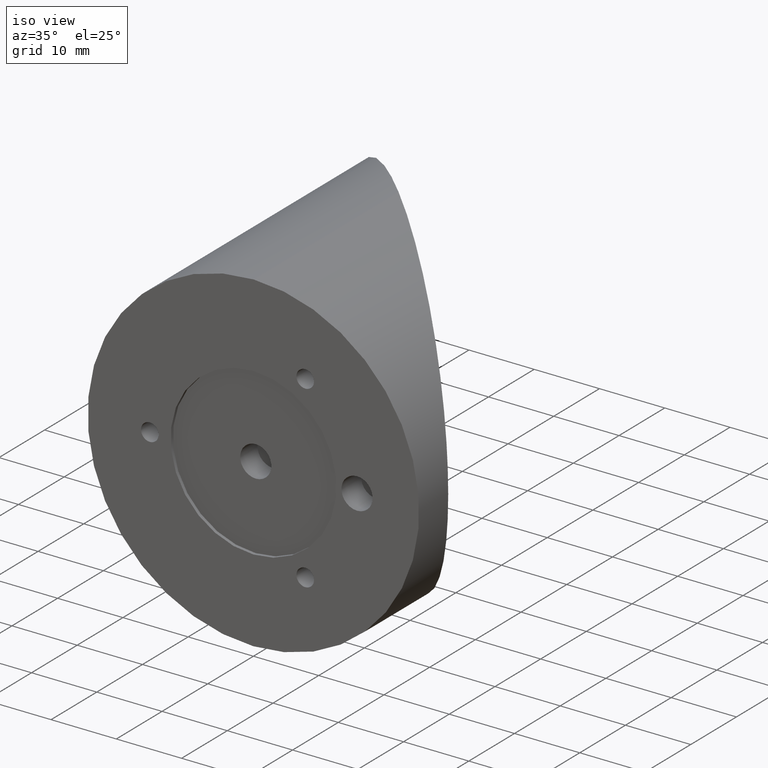
[diagram: clean part render]
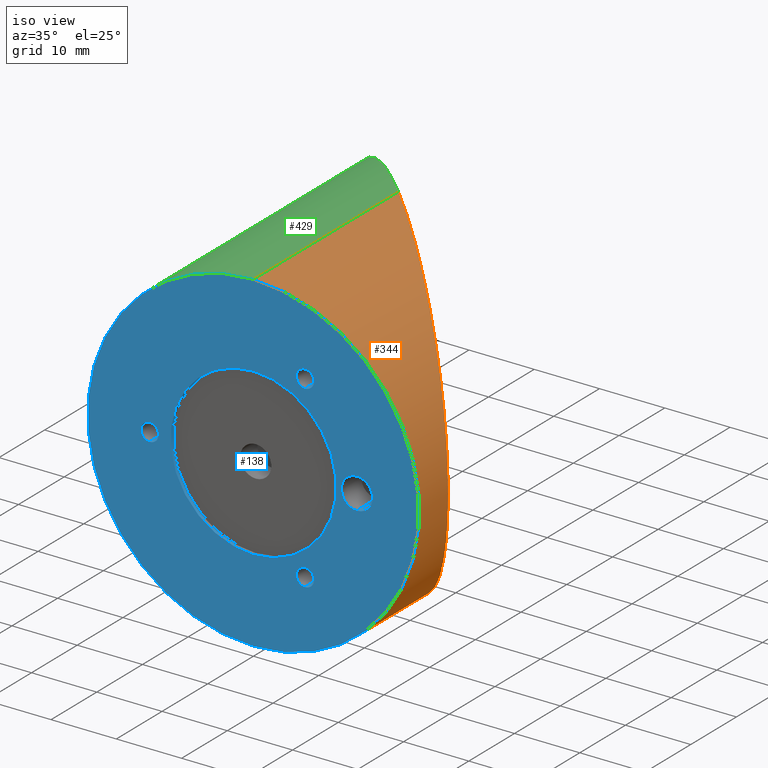
[diagram: same view with three faces highlighted in distinct colors, each labeled with its STEP entity id]
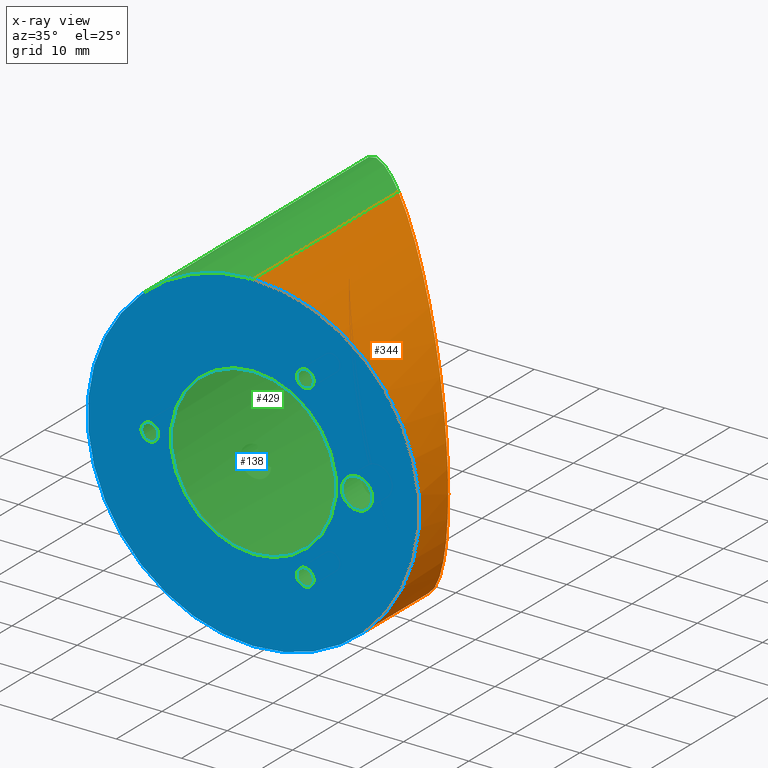
[diagram: x-ray of the same camera — body ghosted, the three highlighted faces saturated]
A machine part, iso view with three faces highlighted in distinct colors.
The next image is the same camera in x-ray (body ghosted, the three faces saturated) — at least one of them is partly hidden behind the body in this view.
Their STEP definitions:

[orange] entity #344 — the highlighted cylindrical surface (partial cylindrical patch) has radius 25.4 mm, axis along (-0, -1, -0).
#1 = DIRECTION ( 'NONE',  ( -0.0000000000000000000, -1.000000000000000000, -0.0000000000000000000 ) ) ;
#3 = CARTESIAN_POINT ( 'NONE',  ( 25.40000000000139124, 6.350000000004712319, -1.007793445402402011 ) ) ;
#4 = CARTESIAN_POINT ( 'NONE',  ( 23.11608779368936339, 8.633912206318735016, 10.53705452664367748 ) ) ;
#7 = CARTESIAN_POINT ( 'NONE',  ( 7.107514868009670472, 24.64248513201214763, -24.42891655262617334 ) ) ;
#20 = CARTESIAN_POINT ( 'NONE',  ( 2.867070042871639135, 28.88292995715369216, -25.24789856614431116 ) ) ;
#36 = CARTESIAN_POINT ( 'NONE',  ( -4.343747583845909616E-12, 31.75000000003258549, 25.39999999999973568 ) ) ;
#44 = CARTESIAN_POINT ( 'NONE',  ( 18.75366693860043554, 12.99633306141087985, 17.21739479121827898 ) ) ;
#64 = CARTESIAN_POINT ( 'NONE',  ( 3.110602869834276865E-15, 0.0000000000000000000, 25.39999999999999858 ) ) ;
#66 = CARTESIAN_POINT ( 'NONE',  ( 24.80328668270944092, 6.946713317296391743, -5.495410143702742722 ) ) ;
#69 = EDGE_CURVE ( 'NONE', #303, #342, #370, .T. ) ;
#80 = CARTESIAN_POINT ( 'NONE',  ( 23.49180749685926983, 8.258192503148499952, 9.670471214657705872 ) ) ;
#85 = CARTESIAN_POINT ( 'NONE',  ( 0.0000000000000000000, 90.23632920900077181, -25.39999999999999858 ) ) ;
#91 = CARTESIAN_POINT ( 'NONE',  ( 3.110602869834276865E-15, 90.23632920900077181, 25.39999999999999858 ) ) ;
#94 = CARTESIAN_POINT ( 'NONE',  ( 18.76394866295997588, 12.98605133705183690, -17.20628069571811380 ) ) ;
#100 = CARTESIAN_POINT ( 'NONE',  ( 11.21135902793158223, 20.53864097208624884, -22.84290149297057937 ) ) ;
#129 = EDGE_CURVE ( 'NONE', #303, #667, #785, .T. ) ;
#131 = CARTESIAN_POINT ( 'NONE',  ( 2.858770735336378710, 28.89122926468965247, 25.24882967334772843 ) ) ;
#159 = CARTESIAN_POINT ( 'NONE',  ( 24.17195477904778755, 7.578045220958599337, -7.861663276391449351 ) ) ;
#162 = VECTOR ( 'NONE', #767, 1000.000000000000000 ) ;
#165 = CARTESIAN_POINT ( 'NONE',  ( 24.45451196593075593, 7.295488034076068828, 6.935761289269316343 ) ) ;
#187 = DIRECTION ( 'NONE',  ( 0.0000000000000000000, 0.0000000000000000000, -1.000000000000000000 ) ) ;
#195 = DIRECTION ( 'NONE',  ( 0.0000000000000000000, 1.000000000000000000, 0.0000000000000000000 ) ) ;
#204 = CARTESIAN_POINT ( 'NONE',  ( 12.84298988541444864, 18.90701011460226511, 21.91716930012565356 ) ) ;
#217 = CARTESIAN_POINT ( 'NONE',  ( 23.67293359248889217, 8.077066407517943247, -9.218703919396871171 ) ) ;
#224 = CARTESIAN_POINT ( 'NONE',  ( 25.39999999999953673, 6.350000000006544632, 1.008915357888921172 ) ) ;
#225 = CARTESIAN_POINT ( 'NONE',  ( 25.40000000000046754, 6.350000000005628920, 2.310600058712741191E-11 ) ) ;
#226 = CARTESIAN_POINT ( 'NONE',  ( 22.91856478368881511, 8.831435216319798442, 10.95957008676527700 ) ) ;
#239 = CARTESIAN_POINT ( 'NONE',  ( 0.7170981315374379550, 31.03290186848983367, -25.39999999999984581 ) ) ;
#242 = CARTESIAN_POINT ( 'NONE',  ( 20.37567222707012604, 11.37432777293942365, -15.17182044832020971 ) ) ;
#259 = CARTESIAN_POINT ( 'NONE',  ( 25.40000000000046754, 6.350000000005628920, 2.310600058712741191E-11 ) ) ;
#268 = CARTESIAN_POINT ( 'NONE',  ( 13.17241457464497500, 18.57758542537235869, 21.72089280077771178 ) ) ;
#273 = CARTESIAN_POINT ( 'NONE',  ( 20.87945820684569398, 10.87054179316435487, 14.47070441000486340 ) ) ;
#280 = EDGE_CURVE ( 'NONE', #667, #519, #804, .T. ) ;
#285 = CARTESIAN_POINT ( 'NONE',  ( 23.11892783636140081, 8.631072163646059892, -10.53081232286892543 ) ) ;
#294 = CARTESIAN_POINT ( 'NONE',  ( 25.34003501376936285, 6.409964986235826778, 2.019679683148877469 ) ) ;
#298 = CARTESIAN_POINT ( 'NONE',  ( 24.45577271687576726, 7.294227283130367390, -6.931481260837111691 ) ) ;
#302 = CARTESIAN_POINT ( 'NONE',  ( 15.77365983277582551, 15.97634016723826278, -19.92461959032602437 ) ) ;
#303 = VERTEX_POINT ( 'NONE', #36 ) ;
#342 = VERTEX_POINT ( 'NONE', #259 ) ;
#343 = CARTESIAN_POINT ( 'NONE',  ( 14.15460011604927182, 17.59539988396674914, 21.09411549236753558 ) ) ;
#344 = ADVANCED_FACE ( 'NONE', ( #742 ), #590, .T. ) ;
#370 = B_SPLINE_CURVE_WITH_KNOTS ( 'NONE', 3,
 ( #736, #798, #533, #131, #540, #803, #872, #542, #666, #204, #268, #734, #343, #399, #469, #669, #44, #868, #471, #273, #405, #877, #702, #226, #4, #80, #566, #561, #165, #836, #810, #294, #224, #626 ),
 .UNSPECIFIED., .F., .F.,
 ( 4, 2, 2, 2, 2, 2, 2, 2, 2, 2, 2, 2, 2, 2, 2, 2, 4 ),
 ( 0.09612468396212230093, 0.09912765318120356217, 0.1021306224002848234, 0.1081365608384473459, 0.1141424992766098684, 0.1156439838861504921, 0.1171454684956911296, 0.1201484377147723770, 0.1261543761529348717, 0.1276558607624755093, 0.1291573453720161191, 0.1321603145910973665, 0.1336617992006380040, 0.1351632838101786138, 0.1381662530292598612, 0.1411692222483411085, 0.1441721914674223282 ),
 .UNSPECIFIED. ) ;
#371 = CARTESIAN_POINT ( 'NONE',  ( 15.14683054440104470, 16.60316945561308088, -20.40453238909995193 ) ) ;
#376 = CARTESIAN_POINT ( 'NONE',  ( 21.13504976809815261, 10.61495023191212006, -14.09492928021393610 ) ) ;
#399 = CARTESIAN_POINT ( 'NONE',  ( 15.12322275977875030, 16.62677724023642511, 20.42218853993120220 ) ) ;
#405 = CARTESIAN_POINT ( 'NONE',  ( 21.12816750881075123, 10.62183249119944861, 14.10527043395201829 ) ) ;
#421 = CARTESIAN_POINT ( 'NONE',  ( 0.0000000000000000000, 0.0000000000000000000, -25.39999999999999858 ) ) ;
#431 = CARTESIAN_POINT ( 'NONE',  ( 25.34023511099329085, 6.409764889012417477, -2.014352294029015500 ) ) ;
#437 = CARTESIAN_POINT ( 'NONE',  ( 21.85500477763475047, 9.894995222374896926, -12.97336527761181912 ) ) ;
#444 = CARTESIAN_POINT ( 'NONE',  ( 17.60588103589598674, 14.14411896411649572, -18.37792682288227297 ) ) ;
#447 = CARTESIAN_POINT ( 'NONE',  ( 3.582885925747320233, 28.16711407427769132, -25.15632303140145254 ) ) ;
#469 = CARTESIAN_POINT ( 'NONE',  ( 15.75322996234837447, 15.99677003766594297, 19.94088469937085861 ) ) ;
#471 = CARTESIAN_POINT ( 'NONE',  ( 20.36646652801032076, 11.38353347200018995, 15.18420568540170557 ) ) ;
#485 = AXIS2_PLACEMENT_3D ( 'NONE', #649, #864, #187 ) ;
#493 = EDGE_CURVE ( 'NONE', #342, #543, #888, .T. ) ;
#498 = CARTESIAN_POINT ( 'NONE',  ( 5.710304965995690374, 26.03969503402746000, -24.79159247131747534 ) ) ;
#516 = CARTESIAN_POINT ( 'NONE',  ( 1.434912573059156093, 30.31508742696742331, -25.36961762708931900 ) ) ;
#519 = VERTEX_POINT ( 'NONE', #421 ) ;
#533 = CARTESIAN_POINT ( 'NONE',  ( 1.427272103732073028, 30.32272789629522691, 25.37003871366476560 ) ) ;
#539 = EDGE_CURVE ( 'NONE', #543, #519, #658, .T. ) ;
#540 = CARTESIAN_POINT ( 'NONE',  ( 3.574495887738063704, 28.17550411228712548, 25.15748655172709647 ) ) ;
#542 = CARTESIAN_POINT ( 'NONE',  ( 9.838007526092477306, 21.91199247392712834, 23.46256244877612218 ) ) ;
#543 = VERTEX_POINT ( 'NONE', #630 ) ;
#557 = CARTESIAN_POINT ( 'NONE',  ( 24.90605418778676139, 6.843945812219055291, -5.009901835480869536 ) ) ;
#561 = CARTESIAN_POINT ( 'NONE',  ( 24.17058905248307710, 7.579410947524475084, 7.866010588764352995 ) ) ;
#566 = CARTESIAN_POINT ( 'NONE',  ( 23.67062844457653981, 8.079371555431473340, 9.224653027104404046 ) ) ;
#568 = CARTESIAN_POINT ( 'NONE',  ( 2.836272883222079599E-13, 31.75000000002761169, -25.39999999999985647 ) ) ;
#590 = CYLINDRICAL_SURFACE ( 'NONE', #485, 25.39999999999999858 ) ;
#599 = CARTESIAN_POINT ( 'NONE',  ( 0.0000000000000000000, 0.0000000000000000000, 0.0000000000000000000 ) ) ;
#626 = CARTESIAN_POINT ( 'NONE',  ( 25.40000000000046754, 6.350000000005628920, 2.310600058712741191E-11 ) ) ;
#627 = CARTESIAN_POINT ( 'NONE',  ( 22.92166091689162499, 8.828339083116061303, -10.95307427962188207 ) ) ;
#630 = CARTESIAN_POINT ( 'NONE',  ( 2.836272883222079599E-13, 31.75000000002761169, -25.39999999999985647 ) ) ;
#637 = CARTESIAN_POINT ( 'NONE',  ( 13.86304219774238256, 17.88695780227283905, -21.29759325797736835 ) ) ;
#642 = CARTESIAN_POINT ( 'NONE',  ( 20.88705431035367965, 10.86294568965542773, -14.45970665876039796 ) ) ;
#649 = CARTESIAN_POINT ( 'NONE',  ( 0.0000000000000000000, 90.23632920900077181, 0.0000000000000000000 ) ) ;
#658 = LINE ( 'NONE', #85, #162 ) ;
#666 = CARTESIAN_POINT ( 'NONE',  ( 11.18778706063290151, 20.56221293938524752, 22.85407206433040272 ) ) ;
#667 = VERTEX_POINT ( 'NONE', #64 ) ;
#669 = CARTESIAN_POINT ( 'NONE',  ( 17.59307431041004932, 14.15692568960265874, 18.39065751052247322 ) ) ;
#681 = CARTESIAN_POINT ( 'NONE',  ( 23.49425201713320632, 8.255747982873929303, -9.664520403921056158 ) ) ;
#682 = CARTESIAN_POINT ( 'NONE',  ( 25.15968195515441153, 6.590318044851459334, -3.522312674461921311 ) ) ;
#695 = CARTESIAN_POINT ( 'NONE',  ( 22.30305074658136988, 9.446949253426870641, -12.18948025352148257 ) ) ;
#702 = CARTESIAN_POINT ( 'NONE',  ( 22.29898126051599405, 9.451018739493157739, 12.19699092671893581 ) ) ;
#704 = CARTESIAN_POINT ( 'NONE',  ( 9.858009842706936254, 21.89199015731248110, -23.45438921556569412 ) ) ;
#709 = ORIENTED_EDGE ( 'NONE', *, *, #129, .T. ) ;
#726 = VECTOR ( 'NONE', #1, 1000.000000000000000 ) ;
#731 = DIRECTION ( 'NONE',  ( 0.0000000000000000000, 0.0000000000000000000, 1.000000000000000000 ) ) ;
#734 = CARTESIAN_POINT ( 'NONE',  ( 13.82786354781533866, 17.92213645220141771, 21.30961941218556888 ) ) ;
#736 = CARTESIAN_POINT ( 'NONE',  ( -4.343747583845909616E-12, 31.75000000003258549, 25.39999999999973568 ) ) ;
#740 = AXIS2_PLACEMENT_3D ( 'NONE', #599, #195, #731 ) ;
#742 = FACE_OUTER_BOUND ( 'NONE', #750, .T. ) ;
#750 = EDGE_LOOP ( 'NONE', ( #852, #709, #806, #754, #791 ) ) ;
#752 = CARTESIAN_POINT ( 'NONE',  ( 25.08412957153990064, 6.665870428465760611, -4.024561497147528755 ) ) ;
#754 = ORIENTED_EDGE ( 'NONE', *, *, #539, .F. ) ;
#767 = DIRECTION ( 'NONE',  ( -0.0000000000000000000, -1.000000000000000000, -0.0000000000000000000 ) ) ;
#785 = LINE ( 'NONE', #91, #726 ) ;
#791 = ORIENTED_EDGE ( 'NONE', *, *, #493, .F. ) ;
#798 = CARTESIAN_POINT ( 'NONE',  ( 0.7129421596522541593, 31.03705784037545712, 25.40000000000013358 ) ) ;
#803 = CARTESIAN_POINT ( 'NONE',  ( 5.698947039450785290, 26.05105296057256226, 24.79408406149796562 ) ) ;
#804 = CIRCLE ( 'NONE', #740, 25.39999999999999858 ) ;
#806 = ORIENTED_EDGE ( 'NONE', *, *, #280, .T. ) ;
#810 = CARTESIAN_POINT ( 'NONE',  ( 25.09710067348774132, 6.652899326517670353, 4.041289188662819498 ) ) ;
#834 = CARTESIAN_POINT ( 'NONE',  ( 13.20369527699512524, 18.54630472302098809, -21.71187718738161365 ) ) ;
#836 = CARTESIAN_POINT ( 'NONE',  ( 24.91773559159261708, 6.832264408413804446, 5.023384630013508989 ) ) ;
#845 = CARTESIAN_POINT ( 'NONE',  ( 20.11151564917184942, 11.63848435083876609, -15.52009358359352476 ) ) ;
#852 = ORIENTED_EDGE ( 'NONE', *, *, #69, .F. ) ;
#864 = DIRECTION ( 'NONE',  ( -0.0000000000000000000, -1.000000000000000000, -0.0000000000000000000 ) ) ;
#868 = CARTESIAN_POINT ( 'NONE',  ( 20.10158260010155118, 11.64841739990857938, 15.53295033666572245 ) ) ;
#872 = CARTESIAN_POINT ( 'NONE',  ( 7.093618743399783710, 24.65638125662221114, 24.43274036757766154 ) ) ;
#877 = CARTESIAN_POINT ( 'NONE',  ( 21.85001223645525670, 9.899987763554307207, 12.98188855474539061 ) ) ;
#888 = B_SPLINE_CURVE_WITH_KNOTS ( 'NONE', 3,
 ( #225, #3, #431, #682, #752, #557, #66, #298, #159, #217, #681, #285, #627, #695, #437, #376, #642, #242, #845, #94, #444, #302, #371, #637, #834, #100, #704, #7, #498, #447, #20, #516, #239, #568 ),
 .UNSPECIFIED., .F., .F.,
 ( 4, 2, 2, 2, 2, 2, 2, 2, 2, 2, 2, 2, 2, 2, 2, 2, 4 ),
 ( 0.1441721914674223282, 0.1471718213890109705, 0.1486716363498052917, 0.1501714513105995852, 0.1531710812321882276, 0.1546708961929825488, 0.1561707111537768700, 0.1591703410753655124, 0.1606701560361598335, 0.1621699709969541547, 0.1681692308401314395, 0.1711688607617200819, 0.1741684906833087243, 0.1801677505264860091, 0.1861670103696633216, 0.1891666402912519640, 0.1921662702128406064 ),
 .UNSPECIFIED. ) ;

[blue] entity #138 — the highlighted planar face has unit normal (0, 1, 0).
#6 = FACE_BOUND ( 'NONE', #435, .T. ) ;
#33 = CARTESIAN_POINT ( 'NONE',  ( 15.87500000000000000, 7.654042494671999858E-19, 0.0000000000000000000 ) ) ;
#37 = DIRECTION ( 'NONE',  ( -0.0000000000000000000, -1.000000000000000000, -0.0000000000000000000 ) ) ;
#47 = CIRCLE ( 'NONE', #799, 1.352549999999999253 ) ;
#57 = DIRECTION ( 'NONE',  ( -0.0000000000000000000, -1.000000000000000000, -0.0000000000000000000 ) ) ;
#60 = ORIENTED_EDGE ( 'NONE', *, *, #324, .F. ) ;
#61 = DIRECTION ( 'NONE',  ( 0.0000000000000000000, 0.0000000000000000000, -1.000000000000000000 ) ) ;
#64 = CARTESIAN_POINT ( 'NONE',  ( 3.110602869834276865E-15, 0.0000000000000000000, 25.39999999999999858 ) ) ;
#65 = CIRCLE ( 'NONE', #671, 1.352549999999999253 ) ;
#71 = DIRECTION ( 'NONE',  ( -0.0000000000000000000, -1.000000000000000000, -0.0000000000000000000 ) ) ;
#74 = AXIS2_PLACEMENT_3D ( 'NONE', #172, #308, #697 ) ;
#75 = CARTESIAN_POINT ( 'NONE',  ( 15.87500000000000000, 7.654042494671999858E-19, 0.0000000000000000000 ) ) ;
#76 = AXIS2_PLACEMENT_3D ( 'NONE', #75, #223, #690 ) ;
#81 = FACE_BOUND ( 'NONE', #745, .T. ) ;
#92 = CARTESIAN_POINT ( 'NONE',  ( 7.937499999999965361, -4.588139233005562251E-17, -13.74815328507798640 ) ) ;
#107 = AXIS2_PLACEMENT_3D ( 'NONE', #826, #309, #295 ) ;
#113 = VERTEX_POINT ( 'NONE', #632 ) ;
#119 = ORIENTED_EDGE ( 'NONE', *, *, #464, .F. ) ;
#138 = ADVANCED_FACE ( 'NONE', ( #81, #6, #699, #886, #144, #155 ), #300, .F. ) ;
#143 = EDGE_CURVE ( 'NONE', #454, #746, #65, .T. ) ;
#144 = FACE_BOUND ( 'NONE', #182, .T. ) ;
#155 = FACE_OUTER_BOUND ( 'NONE', #693, .T. ) ;
#163 = DIRECTION ( 'NONE',  ( 0.0000000000000000000, 0.0000000000000000000, -1.000000000000000000 ) ) ;
#164 = VERTEX_POINT ( 'NONE', #495 ) ;
#166 = CARTESIAN_POINT ( 'NONE',  ( -2.642881778843148241E-15, 0.0000000000000000000, -12.69999999999999929 ) ) ;
#169 = CARTESIAN_POINT ( 'NONE',  ( 7.937499999999965361, -4.588139233005562251E-17, -15.10070328507798543 ) ) ;
#172 = CARTESIAN_POINT ( 'NONE',  ( 0.0000000000000000000, 0.0000000000000000000, 0.0000000000000000000 ) ) ;
#181 = EDGE_CURVE ( 'NONE', #728, #718, #624, .T. ) ;
#182 = EDGE_LOOP ( 'NONE', ( #715, #60 ) ) ;
#195 = DIRECTION ( 'NONE',  ( 0.0000000000000000000, 1.000000000000000000, 0.0000000000000000000 ) ) ;
#213 = AXIS2_PLACEMENT_3D ( 'NONE', #33, #528, #456 ) ;
#214 = ORIENTED_EDGE ( 'NONE', *, *, #181, .F. ) ;
#223 = DIRECTION ( 'NONE',  ( -0.0000000000000000000, -1.000000000000000000, -0.0000000000000000000 ) ) ;
#233 = CARTESIAN_POINT ( 'NONE',  ( -15.87500000000000000, -4.588139233005562251E-17, -1.352549999999999253 ) ) ;
#235 = ORIENTED_EDGE ( 'NONE', *, *, #143, .F. ) ;
#249 = DIRECTION ( 'NONE',  ( 0.0000000000000000000, 0.0000000000000000000, -1.000000000000000000 ) ) ;
#280 = EDGE_CURVE ( 'NONE', #667, #519, #804, .T. ) ;
#295 = DIRECTION ( 'NONE',  ( 0.0000000000000000000, 0.0000000000000000000, 1.000000000000000000 ) ) ;
#300 = PLANE ( 'NONE',  #74 ) ;
#308 = DIRECTION ( 'NONE',  ( 0.0000000000000000000, 1.000000000000000000, 0.0000000000000000000 ) ) ;
#309 = DIRECTION ( 'NONE',  ( 0.0000000000000000000, 1.000000000000000000, 0.0000000000000000000 ) ) ;
#312 = CARTESIAN_POINT ( 'NONE',  ( -2.642881778843148241E-15, 0.0000000000000000000, 0.0000000000000000000 ) ) ;
#318 = CIRCLE ( 'NONE', #784, 12.69999999999999929 ) ;
#324 = EDGE_CURVE ( 'NONE', #164, #879, #783, .T. ) ;
#337 = CIRCLE ( 'NONE', #673, 1.352549999999999253 ) ;
#345 = CARTESIAN_POINT ( 'NONE',  ( 7.937499999999965361, -4.588139233005562251E-17, 15.10070328507798543 ) ) ;
#354 = CARTESIAN_POINT ( 'NONE',  ( 7.937499999999965361, -4.588139233005562251E-17, 13.74815328507798640 ) ) ;
#360 = CIRCLE ( 'NONE', #76, 2.387500000000000622 ) ;
#362 = CARTESIAN_POINT ( 'NONE',  ( 7.937499999999965361, -4.588139233005562251E-17, 13.74815328507798640 ) ) ;
#386 = CARTESIAN_POINT ( 'NONE',  ( 7.937499999999965361, -4.588139233005562251E-17, -13.74815328507798640 ) ) ;
#421 = CARTESIAN_POINT ( 'NONE',  ( 0.0000000000000000000, 0.0000000000000000000, -25.39999999999999858 ) ) ;
#424 = CARTESIAN_POINT ( 'NONE',  ( -2.642881778843148241E-15, 0.0000000000000000000, 0.0000000000000000000 ) ) ;
#425 = AXIS2_PLACEMENT_3D ( 'NONE', #386, #37, #871 ) ;
#435 = EDGE_LOOP ( 'NONE', ( #119, #235 ) ) ;
#439 = CARTESIAN_POINT ( 'NONE',  ( -15.87500000000000000, -4.588139233005562251E-17, 1.352549999999999253 ) ) ;
#440 = DIRECTION ( 'NONE',  ( 0.0000000000000000000, -1.000000000000000000, 0.0000000000000000000 ) ) ;
#449 = EDGE_CURVE ( 'NONE', #611, #722, #318, .T. ) ;
#454 = VERTEX_POINT ( 'NONE', #345 ) ;
#456 = DIRECTION ( 'NONE',  ( 0.0000000000000000000, 0.0000000000000000000, -1.000000000000000000 ) ) ;
#464 = EDGE_CURVE ( 'NONE', #746, #454, #523, .T. ) ;
#470 = ORIENTED_EDGE ( 'NONE', *, *, #449, .F. ) ;
#477 = EDGE_CURVE ( 'NONE', #879, #164, #360, .T. ) ;
#480 = ORIENTED_EDGE ( 'NONE', *, *, #833, .F. ) ;
#484 = ORIENTED_EDGE ( 'NONE', *, *, #788, .F. ) ;
#492 = CARTESIAN_POINT ( 'NONE',  ( 15.87500000000000000, 7.654042494671999858E-19, -2.387500000000000622 ) ) ;
#495 = CARTESIAN_POINT ( 'NONE',  ( 15.87500000000000000, 7.654042494671999858E-19, 2.387500000000000622 ) ) ;
#496 = DIRECTION ( 'NONE',  ( 0.0000000000000000000, 0.0000000000000000000, -1.000000000000000000 ) ) ;
#515 = EDGE_CURVE ( 'NONE', #722, #611, #688, .T. ) ;
#519 = VERTEX_POINT ( 'NONE', #421 ) ;
#523 = CIRCLE ( 'NONE', #875, 1.352549999999999253 ) ;
#528 = DIRECTION ( 'NONE',  ( -0.0000000000000000000, -1.000000000000000000, -0.0000000000000000000 ) ) ;
#551 = AXIS2_PLACEMENT_3D ( 'NONE', #312, #440, #576 ) ;
#555 = DIRECTION ( 'NONE',  ( 0.0000000000000000000, 0.0000000000000000000, -1.000000000000000000 ) ) ;
#569 = CIRCLE ( 'NONE', #107, 25.39999999999999858 ) ;
#572 = CARTESIAN_POINT ( 'NONE',  ( 7.937499999999965361, -4.588139233005562251E-17, 12.39560328507798737 ) ) ;
#576 = DIRECTION ( 'NONE',  ( 0.0000000000000000000, 0.0000000000000000000, -1.000000000000000000 ) ) ;
#599 = CARTESIAN_POINT ( 'NONE',  ( 0.0000000000000000000, 0.0000000000000000000, 0.0000000000000000000 ) ) ;
#611 = VERTEX_POINT ( 'NONE', #811 ) ;
#614 = DIRECTION ( 'NONE',  ( 0.0000000000000000000, -1.000000000000000000, 0.0000000000000000000 ) ) ;
#624 = CIRCLE ( 'NONE', #664, 1.352549999999999253 ) ;
#632 = CARTESIAN_POINT ( 'NONE',  ( 7.937499999999965361, -4.588139233005562251E-17, -12.39560328507798737 ) ) ;
#640 = EDGE_CURVE ( 'NONE', #874, #113, #47, .T. ) ;
#664 = AXIS2_PLACEMENT_3D ( 'NONE', #765, #720, #249 ) ;
#667 = VERTEX_POINT ( 'NONE', #64 ) ;
#670 = ORIENTED_EDGE ( 'NONE', *, *, #640, .F. ) ;
#671 = AXIS2_PLACEMENT_3D ( 'NONE', #354, #57, #61 ) ;
#673 = AXIS2_PLACEMENT_3D ( 'NONE', #835, #887, #555 ) ;
#674 = ORIENTED_EDGE ( 'NONE', *, *, #717, .F. ) ;
#688 = CIRCLE ( 'NONE', #551, 12.69999999999999929 ) ;
#690 = DIRECTION ( 'NONE',  ( 0.0000000000000000000, 0.0000000000000000000, -1.000000000000000000 ) ) ;
#693 = EDGE_LOOP ( 'NONE', ( #674, #721 ) ) ;
#697 = DIRECTION ( 'NONE',  ( 0.0000000000000000000, -0.0000000000000000000, 1.000000000000000000 ) ) ;
#699 = FACE_BOUND ( 'NONE', #815, .T. ) ;
#703 = CIRCLE ( 'NONE', #425, 1.352549999999999253 ) ;
#715 = ORIENTED_EDGE ( 'NONE', *, *, #477, .F. ) ;
#717 = EDGE_CURVE ( 'NONE', #519, #667, #569, .T. ) ;
#718 = VERTEX_POINT ( 'NONE', #439 ) ;
#720 = DIRECTION ( 'NONE',  ( -0.0000000000000000000, -1.000000000000000000, -0.0000000000000000000 ) ) ;
#721 = ORIENTED_EDGE ( 'NONE', *, *, #280, .F. ) ;
#722 = VERTEX_POINT ( 'NONE', #166 ) ;
#728 = VERTEX_POINT ( 'NONE', #233 ) ;
#731 = DIRECTION ( 'NONE',  ( 0.0000000000000000000, 0.0000000000000000000, 1.000000000000000000 ) ) ;
#740 = AXIS2_PLACEMENT_3D ( 'NONE', #599, #195, #731 ) ;
#745 = EDGE_LOOP ( 'NONE', ( #762, #470 ) ) ;
#746 = VERTEX_POINT ( 'NONE', #572 ) ;
#762 = ORIENTED_EDGE ( 'NONE', *, *, #515, .F. ) ;
#765 = CARTESIAN_POINT ( 'NONE',  ( -15.87500000000000000, -4.588139233005562251E-17, 0.0000000000000000000 ) ) ;
#783 = CIRCLE ( 'NONE', #213, 2.387500000000000622 ) ;
#784 = AXIS2_PLACEMENT_3D ( 'NONE', #424, #614, #890 ) ;
#788 = EDGE_CURVE ( 'NONE', #113, #874, #703, .T. ) ;
#799 = AXIS2_PLACEMENT_3D ( 'NONE', #92, #891, #496 ) ;
#804 = CIRCLE ( 'NONE', #740, 25.39999999999999858 ) ;
#811 = CARTESIAN_POINT ( 'NONE',  ( -1.087580343926009808E-15, 0.0000000000000000000, 12.69999999999999929 ) ) ;
#815 = EDGE_LOOP ( 'NONE', ( #670, #484 ) ) ;
#826 = CARTESIAN_POINT ( 'NONE',  ( 0.0000000000000000000, 0.0000000000000000000, 0.0000000000000000000 ) ) ;
#833 = EDGE_CURVE ( 'NONE', #718, #728, #337, .T. ) ;
#835 = CARTESIAN_POINT ( 'NONE',  ( -15.87500000000000000, -4.588139233005562251E-17, 0.0000000000000000000 ) ) ;
#871 = DIRECTION ( 'NONE',  ( 0.0000000000000000000, 0.0000000000000000000, -1.000000000000000000 ) ) ;
#874 = VERTEX_POINT ( 'NONE', #169 ) ;
#875 = AXIS2_PLACEMENT_3D ( 'NONE', #362, #71, #163 ) ;
#879 = VERTEX_POINT ( 'NONE', #492 ) ;
#884 = EDGE_LOOP ( 'NONE', ( #214, #480 ) ) ;
#886 = FACE_BOUND ( 'NONE', #884, .T. ) ;
#887 = DIRECTION ( 'NONE',  ( -0.0000000000000000000, -1.000000000000000000, -0.0000000000000000000 ) ) ;
#890 = DIRECTION ( 'NONE',  ( 0.0000000000000000000, 0.0000000000000000000, -1.000000000000000000 ) ) ;
#891 = DIRECTION ( 'NONE',  ( -0.0000000000000000000, -1.000000000000000000, -0.0000000000000000000 ) ) ;

[green] entity #429 — the highlighted cylindrical surface (partial cylindrical patch) has radius 25.4 mm, axis along (-0, -1, -0).
#1 = DIRECTION ( 'NONE',  ( -0.0000000000000000000, -1.000000000000000000, -0.0000000000000000000 ) ) ;
#9 = CARTESIAN_POINT ( 'NONE',  ( -24.91912955028689680, 56.66912955033638610, 5.016703429672753067 ) ) ;
#12 = B_SPLINE_CURVE_WITH_KNOTS ( 'NONE', 3,
 ( #603, #735, #359, #289, #422, #696, #9, #504, #90, #510, #171, #314, #631, #231, #701, #706, #307, #768, #840, #522, #109, #585, #453, #534, #127, #601, #829, #491, #677, #616, #686, #560 ),
 .UNSPECIFIED., .F., .F.,
 ( 4, 2, 2, 2, 2, 2, 2, 2, 2, 2, 2, 2, 2, 2, 2, 4 ),
 ( 0.04810272725895906737, 0.04960341340593291820, 0.05110409955290677597, 0.05410547184685447764, 0.05560615799382832847, 0.05710684414080217930, 0.06010821643474988096, 0.06160890258172372486, 0.06310958872869756875, 0.06611096102264527041, 0.07211370561054067374, 0.07811645019843607707, 0.08411919478633148040, 0.08712056708027918206, 0.09012193937422688372, 0.09612468396212230093 ),
 .UNSPECIFIED. ) ;
#19 = CARTESIAN_POINT ( 'NONE',  ( -19.30359263965397076, 51.05359263969897654, -16.51397534887710705 ) ) ;
#23 = CARTESIAN_POINT ( 'NONE',  ( -25.39999999999913527, 57.15000000004933156, -3.778634764336981084E-12 ) ) ;
#36 = CARTESIAN_POINT ( 'NONE',  ( -4.343747583845909616E-12, 31.75000000003258549, 25.39999999999973568 ) ) ;
#64 = CARTESIAN_POINT ( 'NONE',  ( 3.110602869834276865E-15, 0.0000000000000000000, 25.39999999999999858 ) ) ;
#84 = AXIS2_PLACEMENT_3D ( 'NONE', #743, #199, #663 ) ;
#85 = CARTESIAN_POINT ( 'NONE',  ( 0.0000000000000000000, 90.23632920900077181, -25.39999999999999858 ) ) ;
#90 = CARTESIAN_POINT ( 'NONE',  ( -24.44232522460061929, 56.19232522465010504, 6.926193841207946456 ) ) ;
#91 = CARTESIAN_POINT ( 'NONE',  ( 3.110602869834276865E-15, 90.23632920900077181, 25.39999999999999858 ) ) ;
#93 = B_SPLINE_CURVE_WITH_KNOTS ( 'NONE', 3,
 ( #773, #379, #797, #866, #260, #177, #596, #99, #383, #196, #712, #264, #732, #323, #639, #19, #529, #445, #341, #660, #517, #180, #842, #777, #465, #336, #121, #514, #320, #600, #848, #23 ),
 .UNSPECIFIED., .F., .F.,
 ( 4, 2, 2, 2, 2, 2, 2, 2, 2, 2, 2, 2, 2, 2, 2, 4 ),
 ( 0.0000000000000000000, 0.006012840907369873880, 0.01202568181473974776, 0.01503210226842468383, 0.01803852272210962338, 0.02405136362947949552, 0.02705778408316443853, 0.02856099431000691871, 0.03006420453684939542, 0.03607704544421930920, 0.03758025567106178244, 0.03908346589790425568, 0.04208988635158919522, 0.04359309657843166153, 0.04509630680527412783, 0.04810272725895906737 ),
 .UNSPECIFIED. ) ;
#99 = CARTESIAN_POINT ( 'NONE',  ( -11.18977277295006978, 42.93977277298796480, -22.81467757225064119 ) ) ;
#107 = AXIS2_PLACEMENT_3D ( 'NONE', #826, #309, #295 ) ;
#109 = CARTESIAN_POINT ( 'NONE',  ( -17.60734394690690507, 49.35734394695076332, 18.37816237363596272 ) ) ;
#121 = CARTESIAN_POINT ( 'NONE',  ( -24.90868563480826836, 56.65868563485760490, -4.997050904854477338 ) ) ;
#127 = CARTESIAN_POINT ( 'NONE',  ( -9.862800616184090430, 41.61280061622073134, 23.45310829498336957 ) ) ;
#129 = EDGE_CURVE ( 'NONE', #303, #667, #785, .T. ) ;
#149 = VERTEX_POINT ( 'NONE', #232 ) ;
#151 = FACE_OUTER_BOUND ( 'NONE', #790, .T. ) ;
#162 = VECTOR ( 'NONE', #767, 1000.000000000000000 ) ;
#171 = CARTESIAN_POINT ( 'NONE',  ( -24.00169820278755139, 55.75169820283742439, 8.325231285725502417 ) ) ;
#177 = CARTESIAN_POINT ( 'NONE',  ( -9.140824242700020363, 40.89082424273583882, -23.70949247268080740 ) ) ;
#180 = CARTESIAN_POINT ( 'NONE',  ( -23.50161380681079137, 55.25161380685845813, -9.646627374330739357 ) ) ;
#196 = CARTESIAN_POINT ( 'NONE',  ( -13.86413127422606273, 45.61413127426556713, -21.33738733701724755 ) ) ;
#199 = DIRECTION ( 'NONE',  ( -0.0000000000000000000, -1.000000000000000000, -0.0000000000000000000 ) ) ;
#231 = CARTESIAN_POINT ( 'NONE',  ( -22.50743737487468366, 54.25743737492236107, 11.78087464265472128 ) ) ;
#232 = CARTESIAN_POINT ( 'NONE',  ( -25.39999999999913527, 57.15000000004933156, -3.778634764336981084E-12 ) ) ;
#260 = CARTESIAN_POINT ( 'NONE',  ( -7.072115939560654319, 38.82211593959468132, -24.43939403359847873 ) ) ;
#264 = CARTESIAN_POINT ( 'NONE',  ( -16.98200230264385624, 48.73200230268696487, -18.90536610218035563 ) ) ;
#289 = CARTESIAN_POINT ( 'NONE',  ( -25.32415586706389732, 57.07415586711366728, 2.026326229893380404 ) ) ;
#295 = DIRECTION ( 'NONE',  ( 0.0000000000000000000, 0.0000000000000000000, 1.000000000000000000 ) ) ;
#303 = VERTEX_POINT ( 'NONE', #36 ) ;
#307 = CARTESIAN_POINT ( 'NONE',  ( -21.60348923600244575, 53.35348923604993843, 13.36597650318471864 ) ) ;
#309 = DIRECTION ( 'NONE',  ( 0.0000000000000000000, 1.000000000000000000, 0.0000000000000000000 ) ) ;
#314 = CARTESIAN_POINT ( 'NONE',  ( -23.50350774278324195, 55.25350774283266730, 9.678279500985645711 ) ) ;
#320 = CARTESIAN_POINT ( 'NONE',  ( -25.16133615854876027, 56.91133615859885708, -3.509876647023339125 ) ) ;
#323 = CARTESIAN_POINT ( 'NONE',  ( -18.45338721870794174, 50.20338721875189947, -17.45869069861144851 ) ) ;
#336 = CARTESIAN_POINT ( 'NONE',  ( -24.80483713886698283, 56.55483713891673148, -5.488609296260127834 ) ) ;
#341 = CARTESIAN_POINT ( 'NONE',  ( -21.88578385787712222, 53.63578385792476411, -13.02471027405156967 ) ) ;
#359 = CARTESIAN_POINT ( 'NONE',  ( -25.38498825607588572, 57.13498825612569476, 1.010564004994352949 ) ) ;
#379 = CARTESIAN_POINT ( 'NONE',  ( -1.437442982173170014, 33.18744298220232025, -25.39999999999987423 ) ) ;
#383 = CARTESIAN_POINT ( 'NONE',  ( -11.86916318419828009, 43.61916318423605077, -22.46925730629641649 ) ) ;
#404 = ORIENTED_EDGE ( 'NONE', *, *, #756, .F. ) ;
#421 = CARTESIAN_POINT ( 'NONE',  ( 0.0000000000000000000, 0.0000000000000000000, -25.39999999999999858 ) ) ;
#422 = CARTESIAN_POINT ( 'NONE',  ( -25.27816902003225152, 57.02816902008233058, 2.535475448995691661 ) ) ;
#429 = ADVANCED_FACE ( 'NONE', ( #151 ), #801, .T. ) ;
#430 = EDGE_CURVE ( 'NONE', #149, #303, #12, .T. ) ;
#445 = CARTESIAN_POINT ( 'NONE',  ( -20.91861858852436740, 52.66861858857134138, -14.50941548914241430 ) ) ;
#453 = CARTESIAN_POINT ( 'NONE',  ( -13.85126286655807171, 45.60126286659910022, 21.34471803107061660 ) ) ;
#465 = CARTESIAN_POINT ( 'NONE',  ( -24.45600912901498347, 56.20600912906441238, -6.931286132635672281 ) ) ;
#475 = ORIENTED_EDGE ( 'NONE', *, *, #539, .T. ) ;
#479 = ORIENTED_EDGE ( 'NONE', *, *, #129, .F. ) ;
#491 = CARTESIAN_POINT ( 'NONE',  ( -5.671297475158661783, 37.42129747519129523, 24.76944659085221545 ) ) ;
#504 = CARTESIAN_POINT ( 'NONE',  ( -24.57160009191174765, 56.32160009196092432, 6.452832837949221023 ) ) ;
#510 = CARTESIAN_POINT ( 'NONE',  ( -24.15743513471668535, 55.90743513476594728, 7.862426548025158723 ) ) ;
#514 = CARTESIAN_POINT ( 'NONE',  ( -25.08703415869224074, 56.83703415874171583, -4.006726209765196778 ) ) ;
#517 = CARTESIAN_POINT ( 'NONE',  ( -23.12656499383951214, 54.87656499388684495, -10.51405073268071355 ) ) ;
#519 = VERTEX_POINT ( 'NONE', #421 ) ;
#522 = CARTESIAN_POINT ( 'NONE',  ( -18.76615306822672835, 50.51615306827064700, 17.20202532302760545 ) ) ;
#529 = CARTESIAN_POINT ( 'NONE',  ( -19.57834054984972383, 51.32834054989550765, -16.18743541012975129 ) ) ;
#534 = CARTESIAN_POINT ( 'NONE',  ( -11.21629007288509605, 42.96629007292380464, 22.83964333839958982 ) ) ;
#539 = EDGE_CURVE ( 'NONE', #543, #519, #658, .T. ) ;
#543 = VERTEX_POINT ( 'NONE', #630 ) ;
#560 = CARTESIAN_POINT ( 'NONE',  ( -4.343747583845909616E-12, 31.75000000003258549, 25.39999999999973568 ) ) ;
#569 = CIRCLE ( 'NONE', #107, 25.39999999999999858 ) ;
#585 = CARTESIAN_POINT ( 'NONE',  ( -15.13432881798463825, 46.88432881802634000, 20.46283226548875334 ) ) ;
#596 = CARTESIAN_POINT ( 'NONE',  ( -9.826554362968096257, 41.57655436300480289, -23.43414937196661185 ) ) ;
#600 = CARTESIAN_POINT ( 'NONE',  ( -25.33990702311787047, 57.08990702316812360, -2.014298265727381576 ) ) ;
#601 = CARTESIAN_POINT ( 'NONE',  ( -7.783134573733062389, 39.53313457376789586, 24.18932817132038693 ) ) ;
#603 = CARTESIAN_POINT ( 'NONE',  ( -25.39999999999913527, 57.15000000004933156, -3.778634764336981084E-12 ) ) ;
#616 = CARTESIAN_POINT ( 'NONE',  ( -2.844736194571884536, 34.59473619460251825, 25.28091507878869848 ) ) ;
#630 = CARTESIAN_POINT ( 'NONE',  ( 2.836272883222079599E-13, 31.75000000002761169, -25.39999999999985647 ) ) ;
#631 = CARTESIAN_POINT ( 'NONE',  ( -23.12815982557323480, 54.87815982562143802, 10.54055032728178176 ) ) ;
#639 = CARTESIAN_POINT ( 'NONE',  ( -18.74118965600967002, 50.49118965605418197, -17.14957378183203218 ) ) ;
#651 = ORIENTED_EDGE ( 'NONE', *, *, #717, .T. ) ;
#658 = LINE ( 'NONE', #85, #162 ) ;
#660 = CARTESIAN_POINT ( 'NONE',  ( -22.92713338263130396, 54.67713338267984824, -10.94182197601735318 ) ) ;
#663 = DIRECTION ( 'NONE',  ( 0.0000000000000000000, 0.0000000000000000000, -1.000000000000000000 ) ) ;
#667 = VERTEX_POINT ( 'NONE', #64 ) ;
#677 = CARTESIAN_POINT ( 'NONE',  ( -4.965716845978517924, 36.71571684601099861, 24.92019169298185233 ) ) ;
#686 = CARTESIAN_POINT ( 'NONE',  ( -1.425126059627978448, 33.17512605965756478, 25.39999999999977121 ) ) ;
#696 = CARTESIAN_POINT ( 'NONE',  ( -25.09726571099270487, 56.84726571104263115, 4.037958997174627918 ) ) ;
#701 = CARTESIAN_POINT ( 'NONE',  ( -22.29087400770605143, 54.04087400775357253, 12.18543310410124114 ) ) ;
#706 = CARTESIAN_POINT ( 'NONE',  ( -21.83922973555666758, 53.58922973560379432, 12.97751472815692075 ) ) ;
#712 = CARTESIAN_POINT ( 'NONE',  ( -15.14508450600651202, 46.89508450604802192, -20.45364255979846035 ) ) ;
#717 = EDGE_CURVE ( 'NONE', #519, #667, #569, .T. ) ;
#726 = VECTOR ( 'NONE', #1, 1000.000000000000000 ) ;
#732 = CARTESIAN_POINT ( 'NONE',  ( -17.58012703624055106, 49.33012703628374140, -18.35191151905208784 ) ) ;
#735 = CARTESIAN_POINT ( 'NONE',  ( -25.40000000000187441, 57.15000000005161240, 0.5044304829905480458 ) ) ;
#743 = CARTESIAN_POINT ( 'NONE',  ( 0.0000000000000000000, 90.23632920900077181, 0.0000000000000000000 ) ) ;
#747 = ORIENTED_EDGE ( 'NONE', *, *, #430, .F. ) ;
#756 = EDGE_CURVE ( 'NONE', #543, #149, #93, .T. ) ;
#767 = DIRECTION ( 'NONE',  ( -0.0000000000000000000, -1.000000000000000000, -0.0000000000000000000 ) ) ;
#768 = CARTESIAN_POINT ( 'NONE',  ( -20.87748549290746780, 52.62748549295434231, 14.49451274477297247 ) ) ;
#773 = CARTESIAN_POINT ( 'NONE',  ( 2.836272883222079599E-13, 31.75000000002761169, -25.39999999999985647 ) ) ;
#777 = CARTESIAN_POINT ( 'NONE',  ( -24.17242148413484770, 55.92242148418475978, -7.859274957132943662 ) ) ;
#785 = LINE ( 'NONE', #91, #726 ) ;
#790 = EDGE_LOOP ( 'NONE', ( #479, #747, #404, #475, #651 ) ) ;
#797 = CARTESIAN_POINT ( 'NONE',  ( -2.860369991372029297, 34.61036999140285531, -25.27885095679501504 ) ) ;
#801 = CYLINDRICAL_SURFACE ( 'NONE', #84, 25.39999999999999858 ) ;
#826 = CARTESIAN_POINT ( 'NONE',  ( 0.0000000000000000000, 0.0000000000000000000, 0.0000000000000000000 ) ) ;
#829 = CARTESIAN_POINT ( 'NONE',  ( -7.079510007499043134, 38.82951000753288895, 24.40429547277573619 ) ) ;
#840 = CARTESIAN_POINT ( 'NONE',  ( -20.36696140388468734, 52.11696140393001997, 15.20119821662514781 ) ) ;
#842 = CARTESIAN_POINT ( 'NONE',  ( -23.67798136625458127, 55.42798136630406702, -9.205527645604352216 ) ) ;
#848 = CARTESIAN_POINT ( 'NONE',  ( -25.40000000000164704, 57.15000000005138503, -1.010557820234926796 ) ) ;
#866 = CARTESIAN_POINT ( 'NONE',  ( -5.677701038040417814, 37.42770103807369964, -24.79850263838590507 ) ) ;